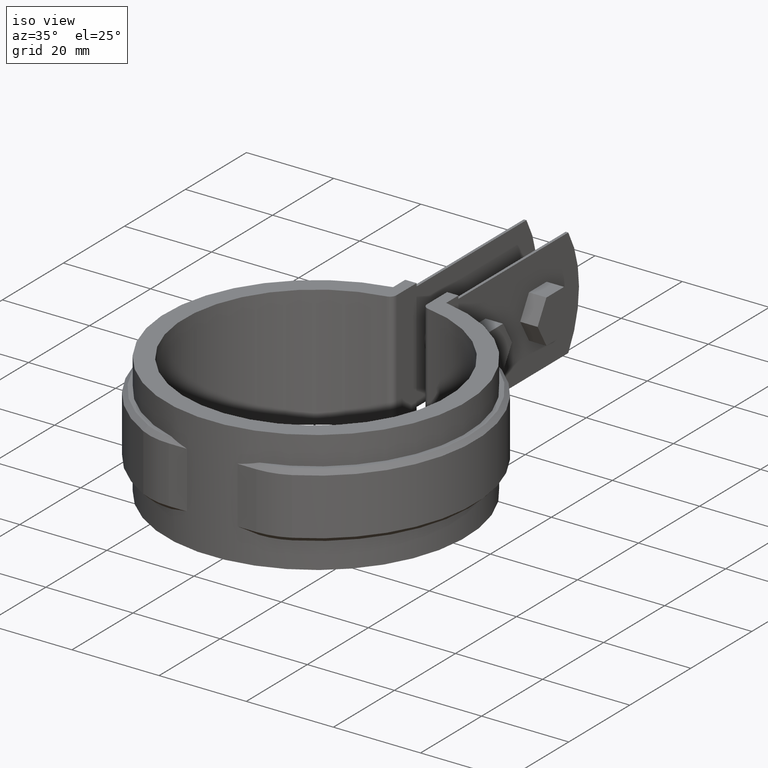
[diagram: clean part render]
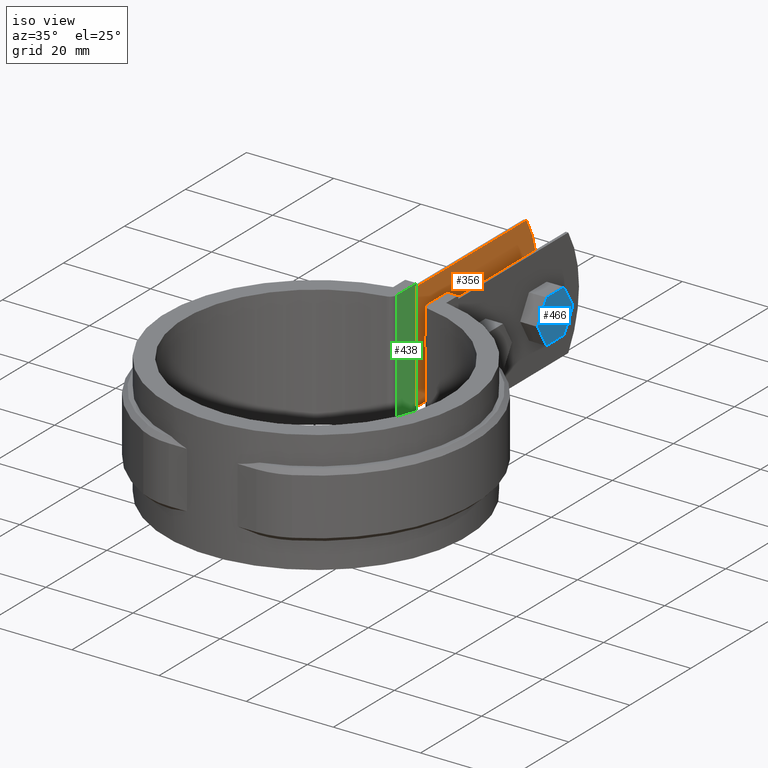
[diagram: same view with three faces highlighted in distinct colors, each labeled with its STEP entity id]
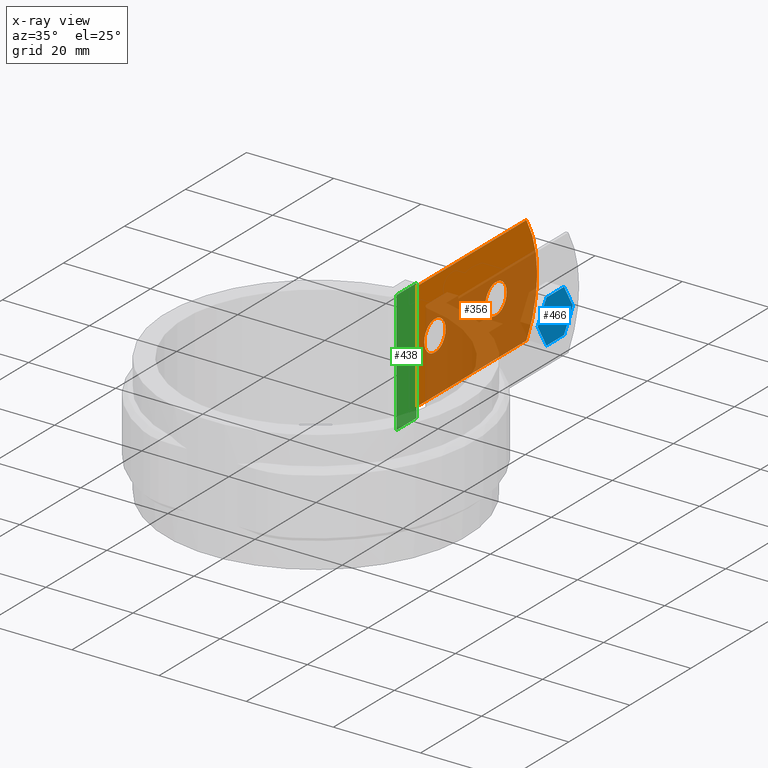
[diagram: x-ray of the same camera — body ghosted, the three highlighted faces saturated]
A machine part, iso view with three faces highlighted in distinct colors.
The next image is the same camera in x-ray (body ghosted, the three faces saturated) — at least one of them is partly hidden behind the body in this view.
Their STEP definitions:

[orange] entity #356 — the highlighted planar face has unit normal (1, -0, 0).
#356 = ADVANCED_FACE( '', ( #613, #614, #615 ), #616, .T. );
#613 = FACE_BOUND( '', #1258, .T. );
#614 = FACE_OUTER_BOUND( '', #1259, .T. );
#615 = FACE_BOUND( '', #1260, .T. );
#616 = PLANE( '', #1261 );
#1258 = EDGE_LOOP( '', ( #2356 ) );
#1259 = EDGE_LOOP( '', ( #2357, #2358, #2359, #2360 ) );
#1260 = EDGE_LOOP( '', ( #2361 ) );
#1261 = AXIS2_PLACEMENT_3D( '', #2362, #2363, #2364 );
#2356 = ORIENTED_EDGE( '', *, *, #4565, .T. );
#2357 = ORIENTED_EDGE( '', *, *, #4559, .T. );
#2358 = ORIENTED_EDGE( '', *, *, #4446, .T. );
#2359 = ORIENTED_EDGE( '', *, *, #4514, .T. );
#2360 = ORIENTED_EDGE( '', *, *, #4550, .F. );
#2361 = ORIENTED_EDGE( '', *, *, #4566, .T. );
#2362 = CARTESIAN_POINT( '', ( -4.50000000000000, 78.9015111874219, 0.000000000000000 ) );
#2363 = DIRECTION( '', ( 1.00000000000000, -6.12303176911189E-017, 0.000000000000000 ) );
#2364 = DIRECTION( '', ( -6.12303176911189E-017, -1.00000000000000, 0.000000000000000 ) );
#4446 = EDGE_CURVE( '', #4963, #4980, #4982, .T. );
#4514 = EDGE_CURVE( '', #4980, #5104, #5106, .T. );
#4550 = EDGE_CURVE( '', #5160, #5104, #5162, .T. );
#4559 = EDGE_CURVE( '', #5160, #4963, #5175, .T. );
#4565 = EDGE_CURVE( '', #5181, #5181, #5182, .F. );
#4566 = EDGE_CURVE( '', #5183, #5183, #5184, .F. );
#4963 = VERTEX_POINT( '', #5834 );
#4980 = VERTEX_POINT( '', #5855 );
#4982 = LINE( '', #5857, #5858 );
#5104 = VERTEX_POINT( '', #6463 );
#5106 = LINE( '', #6465, #6466 );
#5160 = VERTEX_POINT( '', #6875 );
#5162 = LINE( '', #6878, #6879 );
#5175 = CIRCLE( '', #6939, 24.0000000000000 );
#5181 = VERTEX_POINT( '', #7036 );
#5182 = CIRCLE( '', #7037, 3.50000000000000 );
#5183 = VERTEX_POINT( '', #7038 );
#5184 = CIRCLE( '', #7039, 3.50000000000000 );
#5834 = CARTESIAN_POINT( '', ( -4.49999999999999, 75.3893124359698, 0.000000000000000 ) );
#5855 = CARTESIAN_POINT( '', ( -4.50000000000000, 34.1357949958691, 0.000000000000000 ) );
#5857 = CARTESIAN_POINT( '', ( -4.50000000000000, 78.9015111874219, 0.000000000000000 ) );
#5858 = VECTOR( '', #8997, 1000.00000000000 );
#6463 = CARTESIAN_POINT( '', ( -4.50000000000000, 34.1357949958691, -25.0000000000000 ) );
#6465 = CARTESIAN_POINT( '', ( -4.50000000000000, 34.1357949958691, 0.000000000000000 ) );
#6466 = VECTOR( '', #9071, 1000.00000000000 );
#6875 = CARTESIAN_POINT( '', ( -4.49999999999999, 75.3893124359698, -25.0000000000000 ) );
#6878 = CARTESIAN_POINT( '', ( -4.50000000000000, 78.9015111874219, -25.0000000000000 ) );
#6879 = VECTOR( '', #9098, 1000.00000000000 );
#6939 = AXIS2_PLACEMENT_3D( '', #9110, #9111, #9112 );
#7036 = CARTESIAN_POINT( '', ( -4.49999999999999, 68.9015111874219, -12.5000000000000 ) );
#7037 = AXIS2_PLACEMENT_3D( '', #9113, #9114, #9115 );
#7038 = CARTESIAN_POINT( '', ( -4.49999999999999, 48.9015111874219, -12.5000000000000 ) );
#7039 = AXIS2_PLACEMENT_3D( '', #9116, #9117, #9118 );
#8997 = DIRECTION( '', ( -6.12303176911189E-017, -1.00000000000000, 0.000000000000000 ) );
#9071 = DIRECTION( '', ( 0.000000000000000, 0.000000000000000, -1.00000000000000 ) );
#9098 = DIRECTION( '', ( -6.12303176911189E-017, -1.00000000000000, 0.000000000000000 ) );
#9110 = CARTESIAN_POINT( '', ( -4.49999999999999, 54.9015111874219, -12.5000000000000 ) );
#9111 = DIRECTION( '', ( 1.00000000000000, -6.12303176911189E-017, 0.000000000000000 ) );
#9112 = DIRECTION( '', ( 6.12303176911189E-017, 1.00000000000000, 0.000000000000000 ) );
#9113 = CARTESIAN_POINT( '', ( -4.49999999999999, 65.4015111874219, -12.5000000000000 ) );
#9114 = DIRECTION( '', ( 1.00000000000000, -6.12303176911189E-017, 0.000000000000000 ) );
#9115 = DIRECTION( '', ( 6.12303176911189E-017, 1.00000000000000, 0.000000000000000 ) );
#9116 = CARTESIAN_POINT( '', ( -4.49999999999999, 45.4015111874220, -12.5000000000000 ) );
#9117 = DIRECTION( '', ( 1.00000000000000, -6.12303176911189E-017, 0.000000000000000 ) );
#9118 = DIRECTION( '', ( 6.12303176911189E-017, 1.00000000000000, 0.000000000000000 ) );

[blue] entity #466 — the highlighted planar face has unit normal (-1, -0, 0).
#466 = ADVANCED_FACE( '', ( #846 ), #847, .F. );
#846 = FACE_OUTER_BOUND( '', #1806, .T. );
#847 = PLANE( '', #1807 );
#1806 = EDGE_LOOP( '', ( #4045, #4046, #4047, #4048, #4049, #4050 ) );
#1807 = AXIS2_PLACEMENT_3D( '', #4051, #4052, #4053 );
#4045 = ORIENTED_EDGE( '', *, *, #4829, .T. );
#4046 = ORIENTED_EDGE( '', *, *, #4832, .T. );
#4047 = ORIENTED_EDGE( '', *, *, #4835, .T. );
#4048 = ORIENTED_EDGE( '', *, *, #4836, .T. );
#4049 = ORIENTED_EDGE( '', *, *, #4837, .T. );
#4050 = ORIENTED_EDGE( '', *, *, #4838, .T. );
#4051 = CARTESIAN_POINT( '', ( 9.10000000000001, 56.7412571495776, -17.5000000000000 ) );
#4052 = DIRECTION( '', ( -1.00000000000000, -4.76891502080913E-107, 0.000000000000000 ) );
#4053 = DIRECTION( '', ( 0.000000000000000, 0.000000000000000, 1.00000000000000 ) );
#4829 = EDGE_CURVE( '', #5618, #5616, #5619, .T. );
#4832 = EDGE_CURVE( '', #5616, #5621, #5623, .T. );
#4835 = EDGE_CURVE( '', #5621, #5628, #5629, .T. );
#4836 = EDGE_CURVE( '', #5628, #5630, #5631, .T. );
#4837 = EDGE_CURVE( '', #5630, #5632, #5633, .T. );
#4838 = EDGE_CURVE( '', #5632, #5618, #5634, .T. );
#5616 = VERTEX_POINT( '', #8600 );
#5618 = VERTEX_POINT( '', #8603 );
#5619 = LINE( '', #8604, #8605 );
#5621 = VERTEX_POINT( '', #8608 );
#5623 = LINE( '', #8611, #8612 );
#5628 = VERTEX_POINT( '', #8617 );
#5629 = LINE( '', #8618, #8619 );
#5630 = VERTEX_POINT( '', #8620 );
#5631 = LINE( '', #8621, #8622 );
#5632 = VERTEX_POINT( '', #8623 );
#5633 = LINE( '', #8624, #8625 );
#5634 = LINE( '', #8626, #8627 );
#8600 = CARTESIAN_POINT( '', ( 9.10000000000001, 68.2882625333702, -17.5000000000000 ) );
#8603 = CARTESIAN_POINT( '', ( 9.10000000000001, 62.5147598414739, -17.5000000000000 ) );
#8604 = CARTESIAN_POINT( '', ( 9.10000000000001, 62.5147598414739, -17.5000000000000 ) );
#8605 = VECTOR( '', #9439, 999.999999999999 );
#8608 = CARTESIAN_POINT( '', ( 9.10000000000001, 71.1750138793183, -12.5000000000000 ) );
#8611 = CARTESIAN_POINT( '', ( 9.10000000000001, 68.2882625333702, -17.5000000000000 ) );
#8612 = VECTOR( '', #9442, 1000.00000000000 );
#8617 = CARTESIAN_POINT( '', ( 9.10000000000001, 68.2882625333702, -7.50000000000001 ) );
#8618 = CARTESIAN_POINT( '', ( 9.10000000000001, 71.1750138793183, -12.5000000000000 ) );
#8619 = VECTOR( '', #9449, 1000.00000000000 );
#8620 = CARTESIAN_POINT( '', ( 9.10000000000001, 62.5147598414739, -7.50000000000001 ) );
#8621 = CARTESIAN_POINT( '', ( 9.10000000000001, 68.2882625333702, -7.50000000000001 ) );
#8622 = VECTOR( '', #9450, 999.999999999999 );
#8623 = CARTESIAN_POINT( '', ( 9.10000000000001, 59.6280084955258, -12.5000000000000 ) );
#8624 = CARTESIAN_POINT( '', ( 9.10000000000001, 62.5147598414739, -7.50000000000001 ) );
#8625 = VECTOR( '', #9451, 1000.00000000000 );
#8626 = CARTESIAN_POINT( '', ( 9.10000000000001, 59.6280084955258, -12.5000000000000 ) );
#8627 = VECTOR( '', #9452, 1000.00000000000 );
#9439 = DIRECTION( '', ( -4.76891502080913E-107, 1.00000000000000, -3.00462919747432E-016 ) );
#9442 = DIRECTION( '', ( -2.38445751040456E-107, 0.499999999999999, 0.866025403784439 ) );
#9449 = DIRECTION( '', ( 2.38445751040456E-107, -0.499999999999999, 0.866025403784439 ) );
#9450 = DIRECTION( '', ( 4.76891502080913E-107, -1.00000000000000, 0.000000000000000 ) );
#9451 = DIRECTION( '', ( 2.38445751040456E-107, -0.499999999999999, -0.866025403784439 ) );
#9452 = DIRECTION( '', ( -2.38445751040456E-107, 0.499999999999999, -0.866025403784439 ) );

[green] entity #438 — the highlighted planar face has unit normal (1, -0, 0).
#438 = ADVANCED_FACE( '', ( #784 ), #785, .T. );
#784 = FACE_OUTER_BOUND( '', #1744, .T. );
#785 = PLANE( '', #1745 );
#1744 = EDGE_LOOP( '', ( #3845, #3846, #3847, #3848 ) );
#1745 = AXIS2_PLACEMENT_3D( '', #3849, #3850, #3851 );
#3845 = ORIENTED_EDGE( '', *, *, #4685, .F. );
#3846 = ORIENTED_EDGE( '', *, *, #4789, .T. );
#3847 = ORIENTED_EDGE( '', *, *, #4728, .T. );
#3848 = ORIENTED_EDGE( '', *, *, #4575, .T. );
#3849 = CARTESIAN_POINT( '', ( -3.49999999999999, 30.0418046228917, -26.5000000000000 ) );
#3850 = DIRECTION( '', ( 1.00000000000000, -6.07153216591882E-017, 0.000000000000000 ) );
#3851 = DIRECTION( '', ( -6.07153216591882E-017, -1.00000000000000, 0.000000000000000 ) );
#4575 = EDGE_CURVE( '', #5195, #5192, #5196, .T. );
#4685 = EDGE_CURVE( '', #5396, #5192, #5398, .T. );
#4728 = EDGE_CURVE( '', #5466, #5195, #5467, .T. );
#4789 = EDGE_CURVE( '', #5396, #5466, #5553, .F. );
#5192 = VERTEX_POINT( '', #7070 );
#5195 = VERTEX_POINT( '', #7074 );
#5196 = LINE( '', #7075, #7076 );
#5396 = VERTEX_POINT( '', #7800 );
#5398 = LINE( '', #7802, #7803 );
#5466 = VERTEX_POINT( '', #7891 );
#5467 = LINE( '', #7892, #7893 );
#5553 = LINE( '', #8504, #8505 );
#7070 = CARTESIAN_POINT( '', ( -3.49999999999999, 37.9500000000000, 1.50000000000000 ) );
#7074 = CARTESIAN_POINT( '', ( -3.49999999999999, 37.9500000000000, -26.5000000000000 ) );
#7075 = CARTESIAN_POINT( '', ( -3.49999999999999, 37.9500000000000, -26.5000000000000 ) );
#7076 = VECTOR( '', #9125, 1000.00000000000 );
#7800 = CARTESIAN_POINT( '', ( -3.49999999999999, 31.3538275175456, 1.50000000000000 ) );
#7802 = CARTESIAN_POINT( '', ( -3.49999999999999, 30.0418046228917, 1.50000000000000 ) );
#7803 = VECTOR( '', #9255, 1000.00000000000 );
#7891 = CARTESIAN_POINT( '', ( -3.49999999999999, 31.3538275175456, -26.5000000000000 ) );
#7892 = CARTESIAN_POINT( '', ( -3.49999999999999, 30.0418046228917, -26.5000000000000 ) );
#7893 = VECTOR( '', #9342, 1000.00000000000 );
#8504 = CARTESIAN_POINT( '', ( -3.49999999999999, 31.3538275175456, -26.5000000000000 ) );
#8505 = VECTOR( '', #9387, 1000.00000000000 );
#9125 = DIRECTION( '', ( 0.000000000000000, 0.000000000000000, 1.00000000000000 ) );
#9255 = DIRECTION( '', ( 6.07153216591882E-017, 1.00000000000000, 0.000000000000000 ) );
#9342 = DIRECTION( '', ( 6.07153216591882E-017, 1.00000000000000, 0.000000000000000 ) );
#9387 = DIRECTION( '', ( 0.000000000000000, 0.000000000000000, 1.00000000000000 ) );